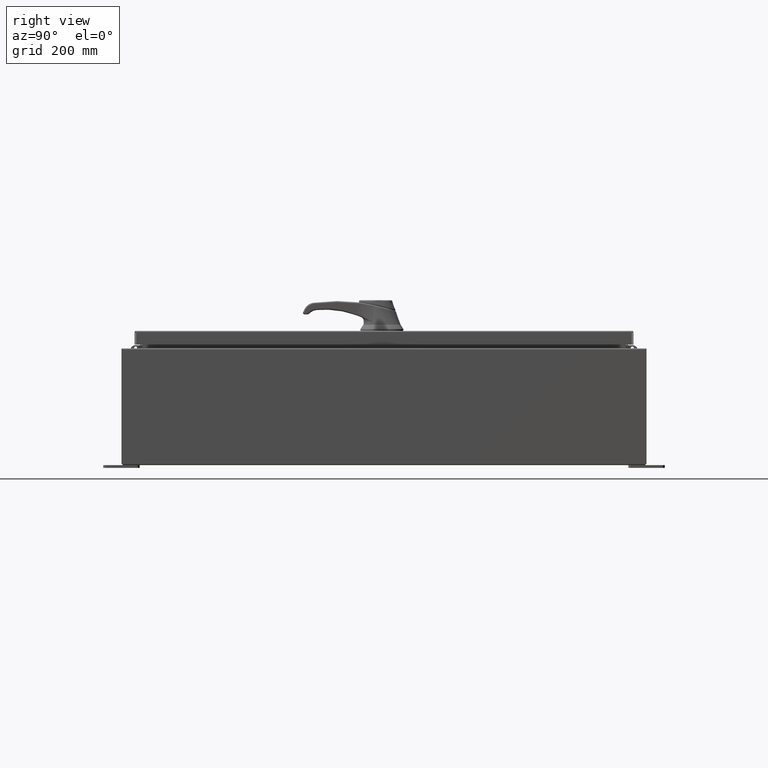
[diagram: clean part render]
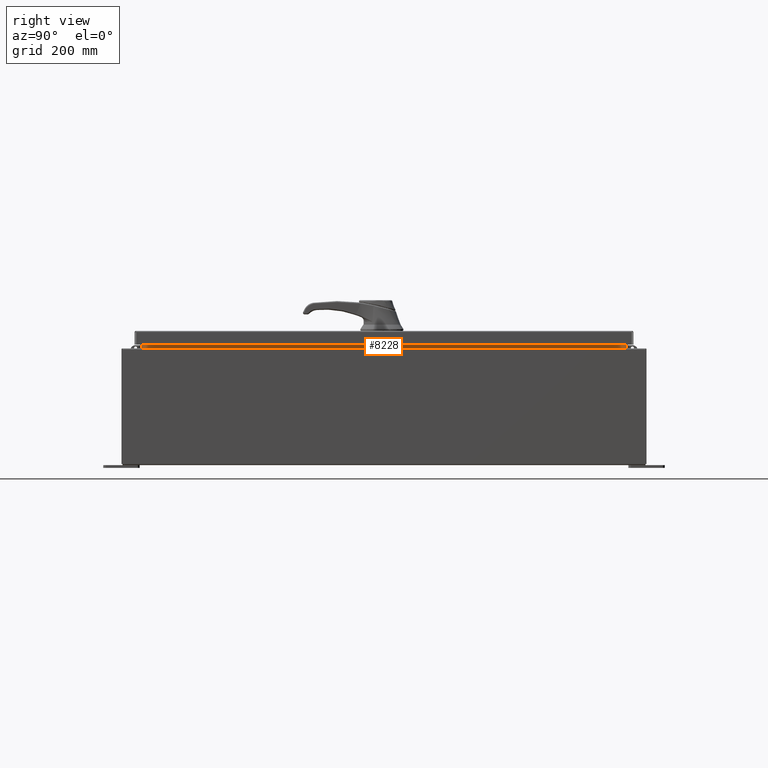
[diagram: same view with one face highlighted and labeled with its STEP entity id]
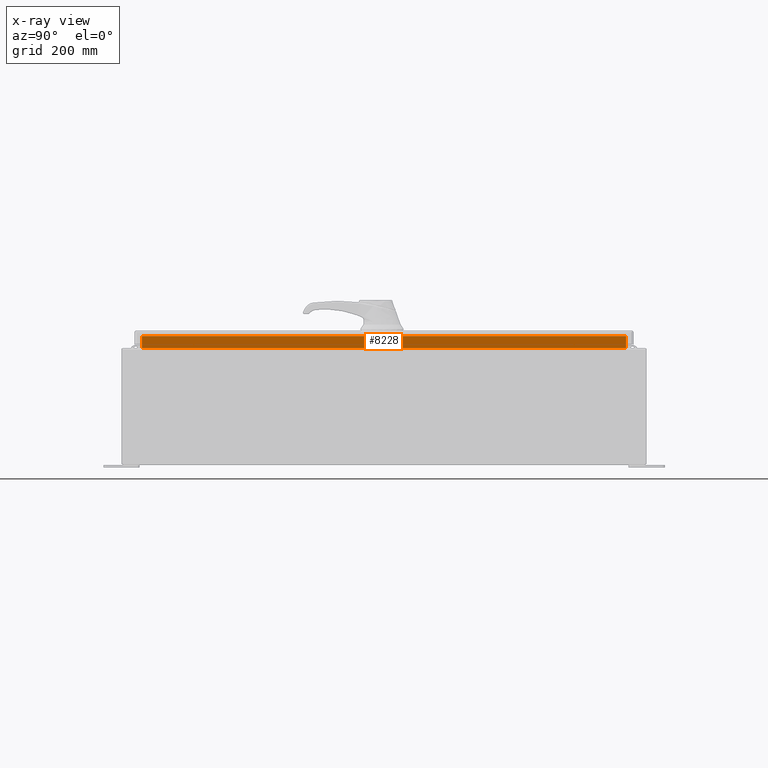
[diagram: x-ray of the same camera — body ghosted, the highlighted face saturated]
A machine part, right view. The second image highlights one B-rep face of the part: STEP entity #8228.
The next image is the same camera in x-ray: the body ghosted, the highlighted face saturated — about 0% of this face is hidden behind the body in this view.
In plain terms, the highlighted planar face has unit normal (1, 0, -0).
Its self-contained STEP definition (entity closure, byte-faithful):
#5592 = VECTOR ( 'NONE', #38187, 39.37007874015748100 ) ;
#6206 = CARTESIAN_POINT ( 'NONE',  ( 13.69970000000003000, -16.59375000000000000, 8.762900000000007200 ) ) ;
#7346 = EDGE_LOOP ( 'NONE', ( #109395, #87487, #110812, #34994 ) ) ;
#8228 = ADVANCED_FACE ( 'NONE', ( #118811 ), #54830, .T. ) ;
#9067 = CARTESIAN_POINT ( 'NONE',  ( 13.69970000000002800, -16.59375000000000000, 7.938300000000010600 ) ) ;
#11195 = VECTOR ( 'NONE', #17451, 39.37007874015748100 ) ;
#14993 = CARTESIAN_POINT ( 'NONE',  ( 13.69970000000002800, 16.59375000000000000, 7.938300000000010600 ) ) ;
#17451 = DIRECTION ( 'NONE',  ( 0.0000000000000000000, 1.000000000000000000, 0.0000000000000000000 ) ) ;
#27007 = CARTESIAN_POINT ( 'NONE',  ( 13.69970000000002800, -16.59375000000000000, 8.762900000000007200 ) ) ;
#30834 = VERTEX_POINT ( 'NONE', #14993 ) ;
#34994 = ORIENTED_EDGE ( 'NONE', *, *, #49179, .F. ) ;
#35761 = CARTESIAN_POINT ( 'NONE',  ( 13.69970000000000700, 0.0000000000000000000, -3.235750390904772800E-014 ) ) ;
#36803 = CARTESIAN_POINT ( 'NONE',  ( 13.69970000000002800, 16.59375000000000000, 8.762900000000007200 ) ) ;
#38187 = DIRECTION ( 'NONE',  ( -2.361913319930196000E-015, -0.0000000000000000000, -1.000000000000000000 ) ) ;
#43396 = DIRECTION ( 'NONE',  ( 2.361913319930201500E-015, -0.0000000000000000000, 1.000000000000000000 ) ) ;
#46279 = LINE ( 'NONE', #100273, #49281 ) ;
#49179 = EDGE_CURVE ( 'NONE', #30834, #121534, #75669, .T. ) ;
#49281 = VECTOR ( 'NONE', #43396, 39.37007874015748100 ) ;
#50451 = VECTOR ( 'NONE', #120412, 39.37007874015748100 ) ;
#54830 = PLANE ( 'NONE',  #59717 ) ;
#59717 = AXIS2_PLACEMENT_3D ( 'NONE', #35761, #121216, #64344 ) ;
#63512 = CARTESIAN_POINT ( 'NONE',  ( 13.69970000000003000, 16.59375000000000000, 7.938300000000007900 ) ) ;
#64344 = DIRECTION ( 'NONE',  ( -2.361913319930196000E-015, 0.0000000000000000000, -1.000000000000000000 ) ) ;
#75157 = EDGE_CURVE ( 'NONE', #121534, #122250, #46279, .T. ) ;
#75669 = LINE ( 'NONE', #63512, #50451 ) ;
#80821 = EDGE_CURVE ( 'NONE', #99405, #30834, #81325, .T. ) ;
#81325 = LINE ( 'NONE', #94639, #5592 ) ;
#85371 = EDGE_CURVE ( 'NONE', #122250, #99405, #112205, .T. ) ;
#87487 = ORIENTED_EDGE ( 'NONE', *, *, #85371, .F. ) ;
#94639 = CARTESIAN_POINT ( 'NONE',  ( 13.69970000000002800, 16.59375000000000000, 7.925300000000007100 ) ) ;
#99405 = VERTEX_POINT ( 'NONE', #36803 ) ;
#100273 = CARTESIAN_POINT ( 'NONE',  ( 13.69970000000003000, -16.59375000000000000, 8.850600000000007100 ) ) ;
#109395 = ORIENTED_EDGE ( 'NONE', *, *, #80821, .F. ) ;
#110812 = ORIENTED_EDGE ( 'NONE', *, *, #75157, .F. ) ;
#112205 = LINE ( 'NONE', #27007, #11195 ) ;
#118811 = FACE_OUTER_BOUND ( 'NONE', #7346, .T. ) ;
#120412 = DIRECTION ( 'NONE',  ( 6.585245634444928200E-017, -1.000000000000000000, 1.975573690333478700E-016 ) ) ;
#121216 = DIRECTION ( 'NONE',  ( 1.000000000000000000, 0.0000000000000000000, -2.361913319930196000E-015 ) ) ;
#121534 = VERTEX_POINT ( 'NONE', #9067 ) ;
#122250 = VERTEX_POINT ( 'NONE', #6206 ) ;